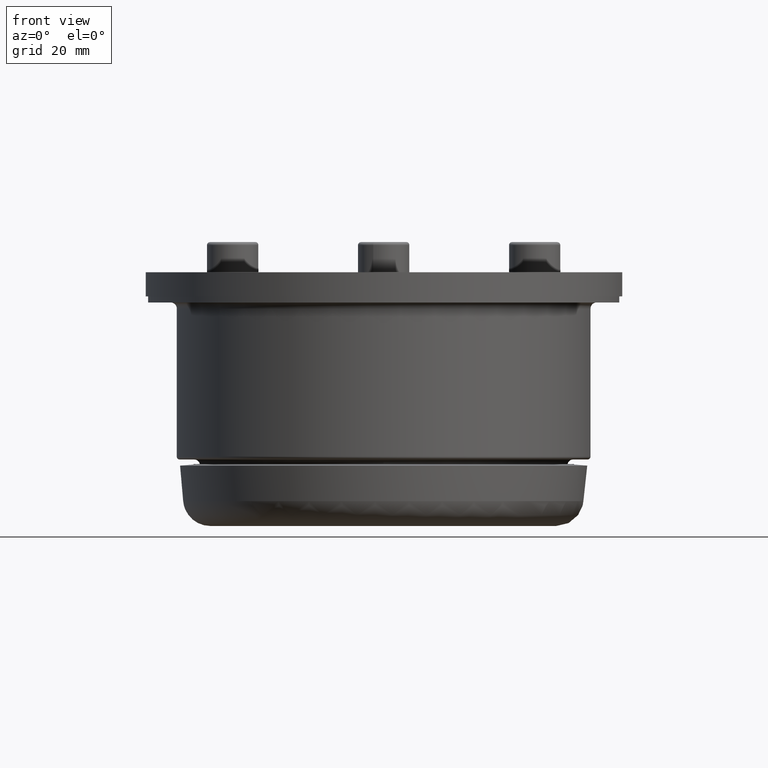
[diagram: clean part render]
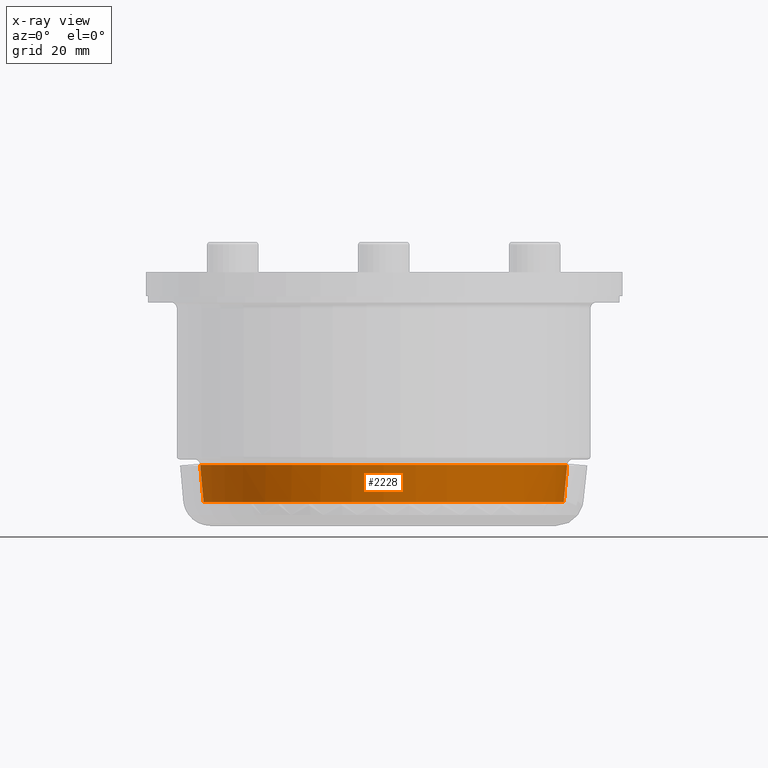
[diagram: x-ray — body ghosted, one internal face saturated and labeled with its STEP entity id]
A machine part, front view, then the same camera in x-ray: the body is ghosted and one INTERNAL B-rep face — a face not visible from any outside direction — is saturated and labeled: STEP entity #2228.
In plain terms, the highlighted conical surface has half-angle 5 deg.
Its self-contained STEP definition (entity closure, byte-faithful):
#2197=CARTESIAN_POINT('',(-4.930381E-031,-30.386467649943114,7.087155742747648));
#2198=VERTEX_POINT('',#2197);
#2199=CARTESIAN_POINT('',(-1.860635E-015,0.0,7.087155742747648));
#2200=DIRECTION('',(0.0,0.0,1.0));
#2201=DIRECTION('',(0.0,1.0,0.0));
#2202=AXIS2_PLACEMENT_3D('',#2199,#2200,#2201);
#2203=CIRCLE('',#2202,30.386467649943114);
#2204=EDGE_CURVE('',#2198,#2198,#2203,.T.);
#2209=CARTESIAN_POINT('',(0.0,0.0,4.412844257252338));
#2210=DIRECTION('',(0.0,0.0,1.0));
#2211=DIRECTION('',(0.0,1.0,0.0));
#2212=AXIS2_PLACEMENT_3D('',#2209,#2210,#2211);
#2213=CONICAL_SURFACE('',#2212,30.152495712225114,4.999999999999748);
#2214=CARTESIAN_POINT('',(-7.310232E-015,-29.846285389884393,0.912844257252347));
#2215=VERTEX_POINT('',#2214);
#2216=CARTESIAN_POINT('',(-1.827558E-015,0.0,0.912844257252347));
#2217=DIRECTION('',(0.0,0.0,-1.0));
#2218=DIRECTION('',(0.0,1.0,0.0));
#2219=AXIS2_PLACEMENT_3D('',#2216,#2217,#2218);
#2220=CIRCLE('',#2219,29.846285389884393);
#2221=EDGE_CURVE('',#2215,#2215,#2220,.T.);
#2222=ORIENTED_EDGE('',*,*,#2221,.F.);
#2223=EDGE_LOOP('',(#2222));
#2224=FACE_OUTER_BOUND('',#2223,.T.);
#2225=ORIENTED_EDGE('',*,*,#2204,.F.);
#2226=EDGE_LOOP('',(#2225));
#2227=FACE_BOUND('',#2226,.T.);
#2228=ADVANCED_FACE('',(#2224,#2227),#2213,.T.);